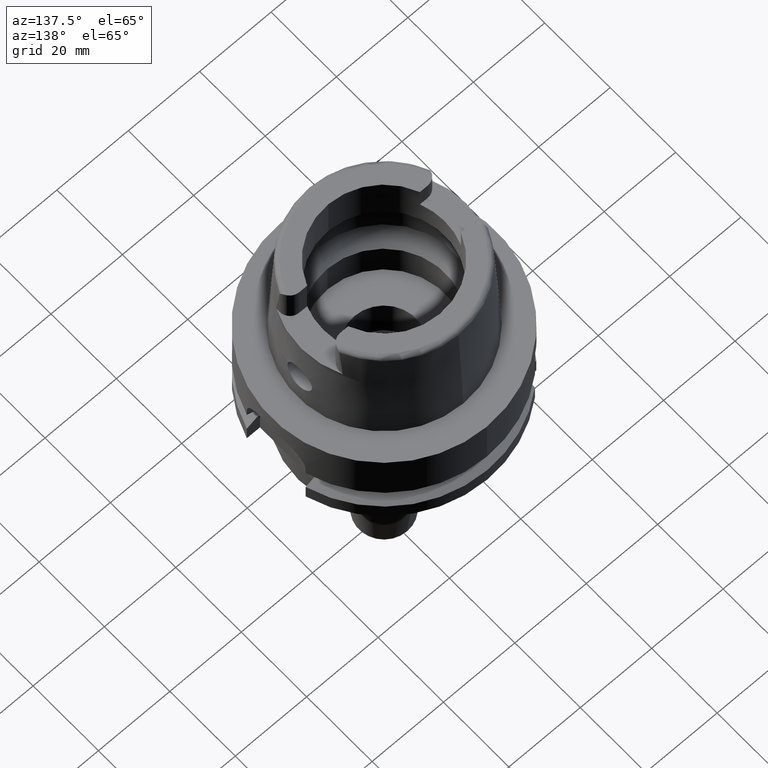
[diagram: clean part render]
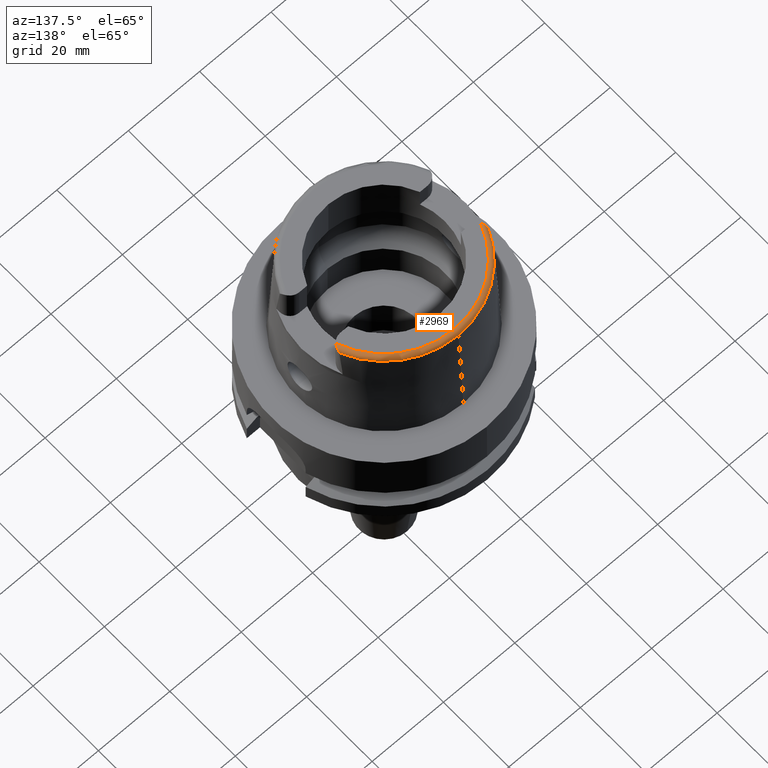
[diagram: same view with one face highlighted and labeled with its STEP entity id]
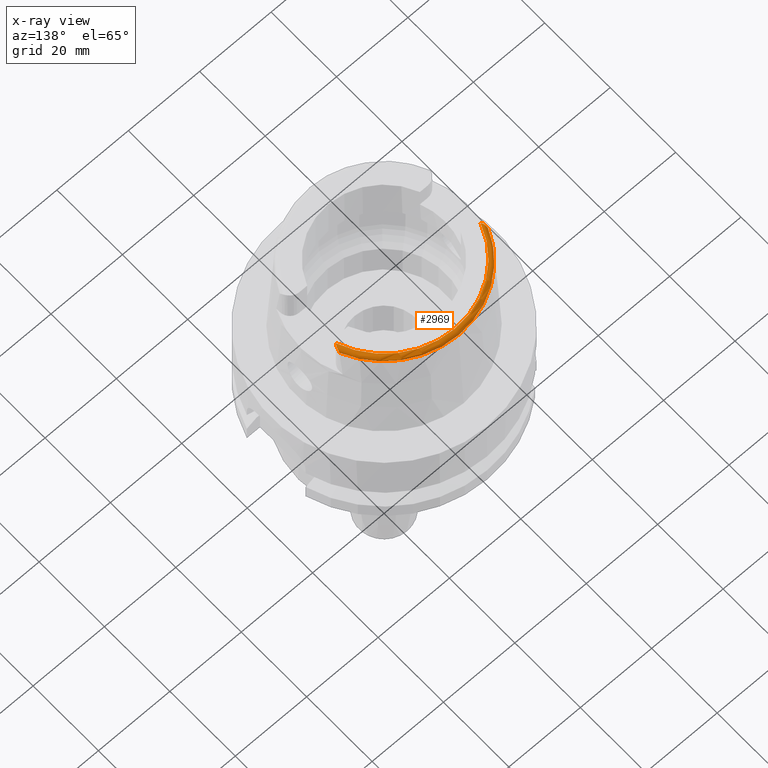
[diagram: x-ray of the same camera — body ghosted, the highlighted face saturated]
A machine part, auxiliary view. The second image highlights one B-rep face of the part: STEP entity #2969.
The next image is the same camera in x-ray: the body ghosted, the highlighted face saturated — about 0% of this face is hidden behind the body in this view.
In plain terms, the highlighted toroidal blend (fillet) surface has major radius 21.5735 mm and minor (blend) radius 1.2 mm.
Its self-contained STEP definition (entity closure, byte-faithful):
#114=CARTESIAN_POINT('',(0.E0,1.601838013285E-14,3.2E1));
#115=DIRECTION('',(0.E0,0.E0,-1.E0));
#116=DIRECTION('',(-9.395199128801E-1,3.424942821446E-1,0.E0));
#117=AXIS2_PLACEMENT_3D('',#114,#115,#116);
#122=CARTESIAN_POINT('',(0.E0,1.601838013285E-14,3.2E1));
#123=DIRECTION('',(0.E0,0.E0,-1.E0));
#124=DIRECTION('',(9.289215035771E-4,9.999995685523E-1,0.E0));
#125=AXIS2_PLACEMENT_3D('',#122,#123,#124);
#474=CARTESIAN_POINT('',(-2.026871835884E1,7.388795116670E0,3.2E1));
#475=CARTESIAN_POINT('',(-2.031887110494E1,7.453684775090E0,3.2E1));
#476=CARTESIAN_POINT('',(-2.041707676475E1,7.591775848676E0,3.198838914277E1));
#477=CARTESIAN_POINT('',(-2.055785753174E1,7.835727184128E0,3.192902441840E1));
#478=CARTESIAN_POINT('',(-2.067034691435E1,8.085641842124E0,3.183333145077E1));
#479=CARTESIAN_POINT('',(-2.074995136458E1,8.316887730935E0,3.171735973131E1));
#480=CARTESIAN_POINT('',(-2.080195812111E1,8.518117283240E0,3.159401442981E1));
#481=CARTESIAN_POINT('',(-2.083429192271E1,8.688871009909E0,3.146903077897E1));
#482=CARTESIAN_POINT('',(-2.085318499043E1,8.830491615052E0,3.134479486718E1));
#483=CARTESIAN_POINT('',(-2.086333520610E1,8.945739267514E0,3.121973925668E1));
#484=CARTESIAN_POINT('',(-2.086787132533E1,9.031977596444E0,3.109654689140E1));
#485=CARTESIAN_POINT('',(-2.086945442853E1,9.089321896452E0,3.097367172992E1));
#486=CARTESIAN_POINT('',(-2.086968056280E1,9.106868459077E0,3.089716688738E1));
#487=CARTESIAN_POINT('',(-2.086974110889E1,9.111383544665E0,3.085992740419E1));
#492=CARTESIAN_POINT('',(0.E0,1.601838013285E-14,3.085992712280E1));
#493=DIRECTION('',(0.E0,0.E0,-1.E0));
#494=DIRECTION('',(-9.164655183266E-1,4.001136759952E-1,0.E0));
#495=AXIS2_PLACEMENT_3D('',#492,#493,#494);
#500=CARTESIAN_POINT('',(0.E0,1.601838013285E-14,3.085992712280E1));
#501=DIRECTION('',(0.E0,0.E0,-1.E0));
#502=DIRECTION('',(0.E0,1.E0,0.E0));
#503=AXIS2_PLACEMENT_3D('',#500,#501,#502);
#508=CARTESIAN_POINT('',(0.E0,1.601838013285E-14,3.085992712280E1));
#509=DIRECTION('',(0.E0,0.E0,-1.E0));
#510=DIRECTION('',(9.289215035764E-4,9.999995685523E-1,0.E0));
#511=AXIS2_PLACEMENT_3D('',#508,#509,#510);
#516=CARTESIAN_POINT('',(2.086974104063E1,9.111384045993E0,3.085992598968E1));
#517=CARTESIAN_POINT('',(2.086968050023E1,9.106869266827E0,3.089716291671E1));
#518=CARTESIAN_POINT('',(2.086945458745E1,9.089326471975E0,3.097365987477E1));
#519=CARTESIAN_POINT('',(2.086787122121E1,9.031976034301E0,3.109654970731E1));
#520=CARTESIAN_POINT('',(2.086333578788E1,8.945748535530E0,3.121972685980E1));
#521=CARTESIAN_POINT('',(2.085318620341E1,8.830503306735E0,3.134478342936E1));
#522=CARTESIAN_POINT('',(2.083429586813E1,8.688897842720E0,3.146900855464E1));
#523=CARTESIAN_POINT('',(2.080196666689E1,8.518154036719E0,3.159399044616E1));
#524=CARTESIAN_POINT('',(2.074995749239E1,8.316909037568E0,3.171734762645E1));
#525=CARTESIAN_POINT('',(2.067036447383E1,8.085686269862E0,3.183331174228E1));
#526=CARTESIAN_POINT('',(2.055786546828E1,7.835739415346E0,3.192902240804E1));
#527=CARTESIAN_POINT('',(2.041706786686E1,7.591761360884E0,3.198839208590E1));
#528=CARTESIAN_POINT('',(2.031886564692E1,7.453677713277E0,3.2E1));
#529=CARTESIAN_POINT('',(2.026871835884E1,7.388795116670E0,3.2E1));
#2353=CARTESIAN_POINT('',(-2.026871835884E1,7.388795116670E0,3.2E1));
#2354=VERTEX_POINT('',#2353);
#2355=CARTESIAN_POINT('',(2.004007373911E-2,2.157347527826E1,3.2E1));
#2356=CARTESIAN_POINT('',(2.026871835884E1,7.388795116669E0,3.2E1));
#2357=VERTEX_POINT('',#2355);
#2358=VERTEX_POINT('',#2356);
#2389=VERTEX_POINT('',#487);
#2390=CARTESIAN_POINT('',(0.E0,2.277198729362E1,3.085992712280E1));
#2391=VERTEX_POINT('',#2390);
#2392=CARTESIAN_POINT('',(2.115338867621E-2,2.277197746870E1,3.085992712280E1));
#2393=CARTESIAN_POINT('',(2.086974092012E1,9.111384045666E0,3.085992712280E1));
#2394=VERTEX_POINT('',#2392);
#2395=VERTEX_POINT('',#2393);
#2953=CARTESIAN_POINT('',(0.E0,1.601838013285E-14,3.08E1));
#2954=DIRECTION('',(0.E0,0.E0,-1.E0));
#2955=DIRECTION('',(-9.289215035770E-4,-9.999995685523E-1,0.E0));
#2956=AXIS2_PLACEMENT_3D('',#2953,#2954,#2955);
#2957=TOROIDAL_SURFACE('',#2956,2.157348458609E1,1.2E0);
#2959=ORIENTED_EDGE('',*,*,#2958,.T.);
#2961=ORIENTED_EDGE('',*,*,#2960,.T.);
#2962=ORIENTED_EDGE('',*,*,#2905,.T.);
#2963=ORIENTED_EDGE('',*,*,#2903,.T.);
#2964=ORIENTED_EDGE('',*,*,#2948,.T.);
#2965=ORIENTED_EDGE('',*,*,#2737,.F.);
#2966=ORIENTED_EDGE('',*,*,#2735,.F.);
#2967=EDGE_LOOP('',(#2959,#2961,#2962,#2963,#2964,#2965,#2966));
#2968=FACE_OUTER_BOUND('',#2967,.F.);
#118=CIRCLE('',#117,2.157348458609E1);
#126=CIRCLE('',#125,2.157348458609E1);
#488=B_SPLINE_CURVE_WITH_KNOTS('',3,(#474,#475,#476,#477,#478,#479,#480,#481,
#482,#483,#484,#485,#486,#487),.UNSPECIFIED.,.F.,.F.,(4,1,1,1,1,1,1,1,1,1,1,4),(
0.E0,9.090909090909E-2,1.818181818182E-1,2.727272727273E-1,3.636363636364E-1,
4.545454545455E-1,5.454545454545E-1,6.363636363636E-1,7.272727272727E-1,
8.181818181818E-1,9.090909090909E-1,1.E0),.UNSPECIFIED.);
#496=CIRCLE('',#495,2.277198729362E1);
#504=CIRCLE('',#503,2.277198729362E1);
#512=CIRCLE('',#511,2.277198729362E1);
#530=B_SPLINE_CURVE_WITH_KNOTS('',3,(#516,#517,#518,#519,#520,#521,#522,#523,
#524,#525,#526,#527,#528,#529),.UNSPECIFIED.,.F.,.F.,(4,1,1,1,1,1,1,1,1,1,1,4),(
0.E0,9.090909090909E-2,1.818181818182E-1,2.727272727273E-1,3.636363636364E-1,
4.545454545455E-1,5.454545454545E-1,6.363636363636E-1,7.272727272727E-1,
8.181818181818E-1,9.090909090909E-1,1.E0),.UNSPECIFIED.);
#2735=EDGE_CURVE('',#2354,#2357,#118,.T.);
#2737=EDGE_CURVE('',#2357,#2358,#126,.T.);
#2903=EDGE_CURVE('',#2394,#2395,#512,.T.);
#2905=EDGE_CURVE('',#2391,#2394,#504,.T.);
#2948=EDGE_CURVE('',#2395,#2358,#530,.T.);
#2958=EDGE_CURVE('',#2354,#2389,#488,.T.);
#2960=EDGE_CURVE('',#2389,#2391,#496,.T.);
#2969=ADVANCED_FACE('',(#2968),#2957,.T.);